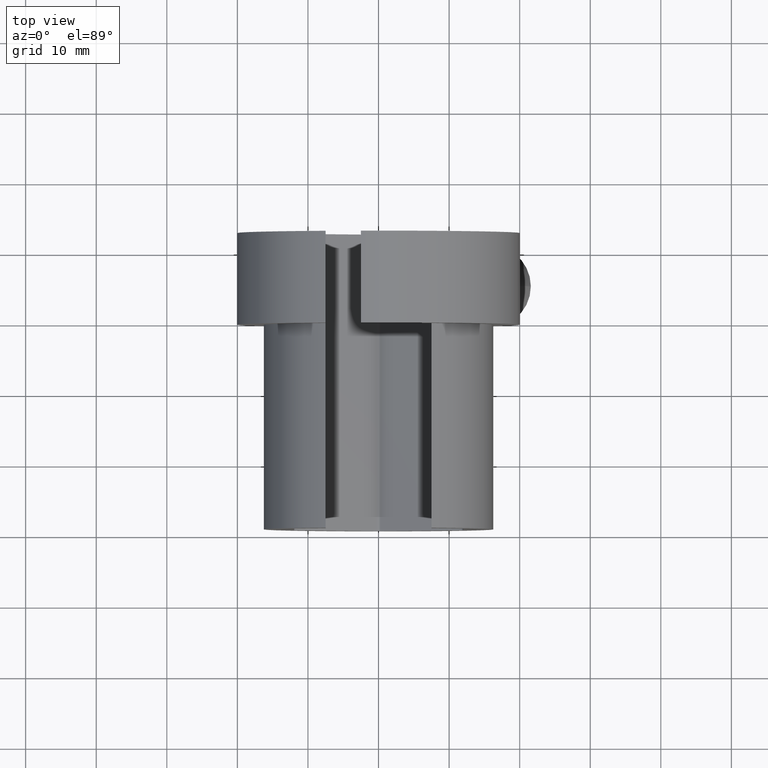
[diagram: clean part render]
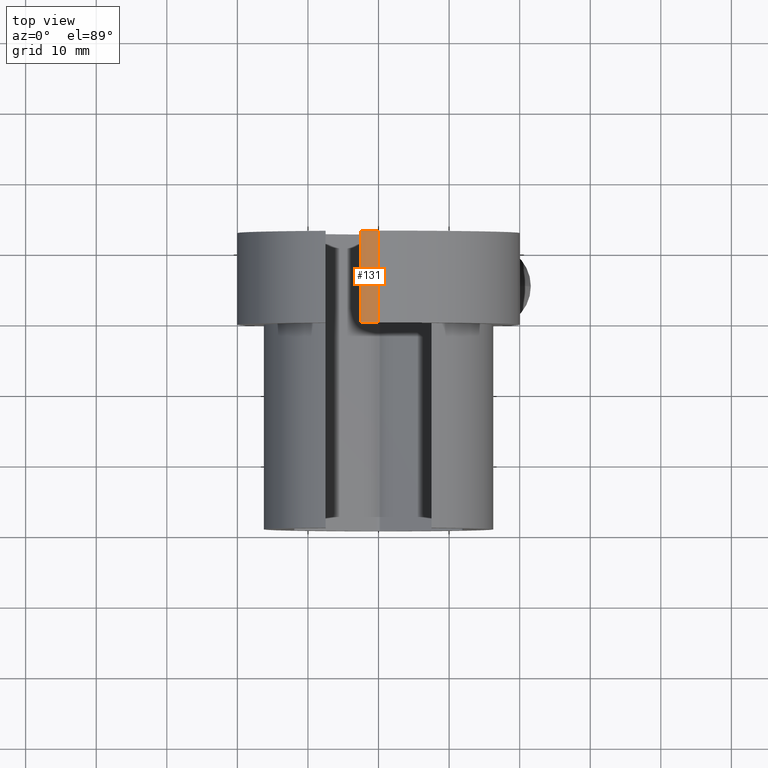
[diagram: same view with one face highlighted and labeled with its STEP entity id]
A machine part, top view. The second image highlights one B-rep face of the part: STEP entity #131.
In plain terms, the highlighted cylindrical surface (partial cylindrical patch) has radius 20.03 mm, axis along (0, 1, 0).
Its self-contained STEP definition (entity closure, byte-faithful):
#10 = EDGE_CURVE ( 'NONE', #135, #12, #606, .T. ) ;
#11 = ORIENTED_EDGE ( 'NONE', *, *, #10, .F. ) ;
#12 = VERTEX_POINT ( 'NONE', #602 ) ;
#130 = EDGE_CURVE ( 'NONE', #176, #178, #909, .T. ) ;
#131 = ADVANCED_FACE ( 'NONE', ( #905 ), #729, .T. ) ;
#132 = EDGE_LOOP ( 'NONE', ( #133, #136, #286, #11 ) ) ;
#133 = ORIENTED_EDGE ( 'NONE', *, *, #134, .T. ) ;
#134 = EDGE_CURVE ( 'NONE', #135, #176, #724, .T. ) ;
#135 = VERTEX_POINT ( 'NONE', #720 ) ;
#136 = ORIENTED_EDGE ( 'NONE', *, *, #130, .T. ) ;
#176 = VERTEX_POINT ( 'NONE', #789 ) ;
#178 = VERTEX_POINT ( 'NONE', #787 ) ;
#245 = EDGE_CURVE ( 'NONE', #12, #178, #850, .T. ) ;
#286 = ORIENTED_EDGE ( 'NONE', *, *, #245, .F. ) ;
#602 = CARTESIAN_POINT ( 'NONE',  ( -2.500000000000000000, 41.99900000000000200, 19.87337163140668400 ) ) ;
#603 = DIRECTION ( 'NONE',  ( 0.0000000000000000000, 1.000000000000000000, 0.0000000000000000000 ) ) ;
#604 = VECTOR ( 'NONE', #603, 1000.000000000000000 ) ;
#605 = CARTESIAN_POINT ( 'NONE',  ( -2.500000000000000000, 28.99900000000000200, 19.87337163140668400 ) ) ;
#606 = LINE ( 'NONE', #605, #604 ) ;
#720 = CARTESIAN_POINT ( 'NONE',  ( -2.500000000000000000, 28.99900000000000200, 19.87337163140668400 ) ) ;
#721 = DIRECTION ( 'NONE',  ( 0.0000000000000000000, 0.0000000000000000000, 1.000000000000000000 ) ) ;
#722 = DIRECTION ( 'NONE',  ( 0.0000000000000000000, 1.000000000000000000, 0.0000000000000000000 ) ) ;
#723 = AXIS2_PLACEMENT_3D ( 'NONE', #728, #722, #721 ) ;
#724 = CIRCLE ( 'NONE', #723, 20.02999999999999800 ) ;
#725 = DIRECTION ( 'NONE',  ( 0.0000000000000000000, 0.0000000000000000000, 1.000000000000000000 ) ) ;
#726 = DIRECTION ( 'NONE',  ( 0.0000000000000000000, 1.000000000000000000, 0.0000000000000000000 ) ) ;
#727 = AXIS2_PLACEMENT_3D ( 'NONE', #910, #726, #725 ) ;
#728 = CARTESIAN_POINT ( 'NONE',  ( 0.0000000000000000000, 28.99900000000000200, 0.0000000000000000000 ) ) ;
#729 = CYLINDRICAL_SURFACE ( 'NONE', #727, 20.02999999999999800 ) ;
#787 = CARTESIAN_POINT ( 'NONE',  ( 0.0000000000000000000, 41.99900000000000200, 20.02999999999999800 ) ) ;
#789 = CARTESIAN_POINT ( 'NONE',  ( 0.0000000000000000000, 28.99900000000000200, 20.02999999999999800 ) ) ;
#846 = DIRECTION ( 'NONE',  ( 0.0000000000000000000, 0.0000000000000000000, 1.000000000000000000 ) ) ;
#847 = DIRECTION ( 'NONE',  ( 0.0000000000000000000, 1.000000000000000000, 0.0000000000000000000 ) ) ;
#848 = CARTESIAN_POINT ( 'NONE',  ( 0.0000000000000000000, 41.99900000000000200, 0.0000000000000000000 ) ) ;
#849 = AXIS2_PLACEMENT_3D ( 'NONE', #848, #847, #846 ) ;
#850 = CIRCLE ( 'NONE', #849, 20.02999999999999800 ) ;
#905 = FACE_OUTER_BOUND ( 'NONE', #132, .T. ) ;
#906 = DIRECTION ( 'NONE',  ( 0.0000000000000000000, 1.000000000000000000, 0.0000000000000000000 ) ) ;
#907 = VECTOR ( 'NONE', #906, 1000.000000000000000 ) ;
#908 = CARTESIAN_POINT ( 'NONE',  ( 0.0000000000000000000, 28.99900000000000200, 20.02999999999999800 ) ) ;
#909 = LINE ( 'NONE', #908, #907 ) ;
#910 = CARTESIAN_POINT ( 'NONE',  ( 0.0000000000000000000, 28.99900000000000200, 0.0000000000000000000 ) ) ;